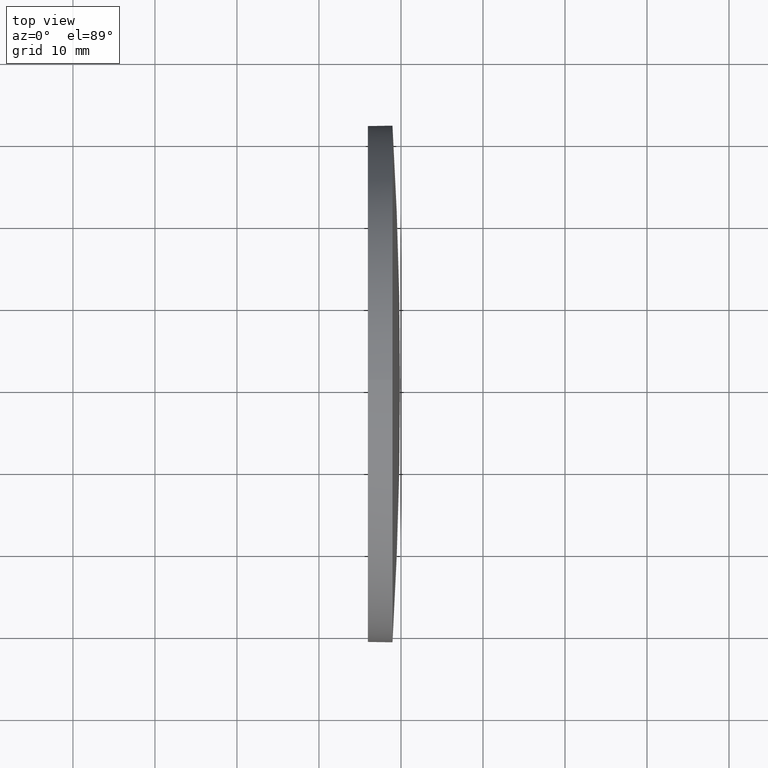
[diagram: clean part render]
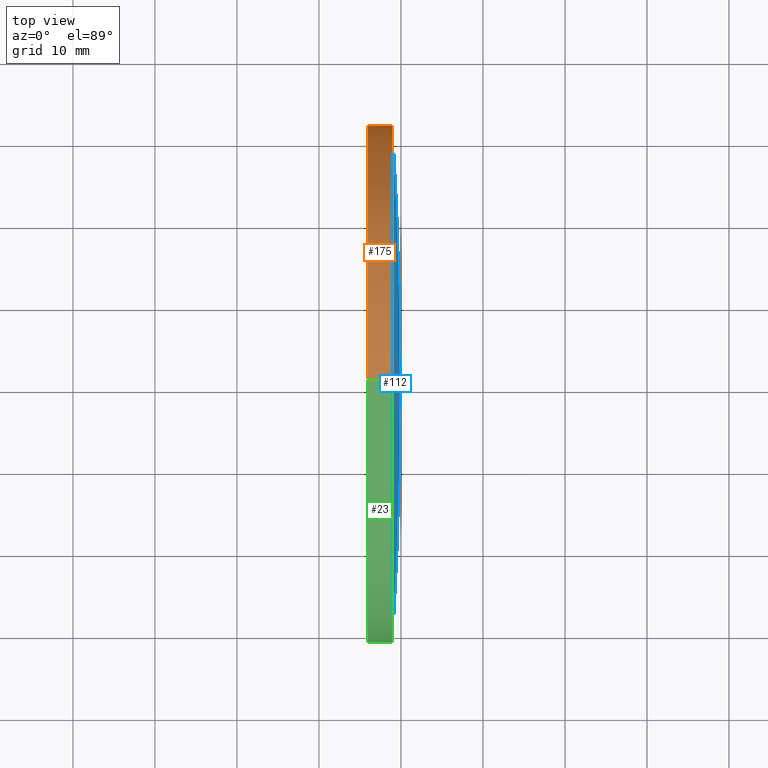
[diagram: same view with three faces highlighted in distinct colors, each labeled with its STEP entity id]
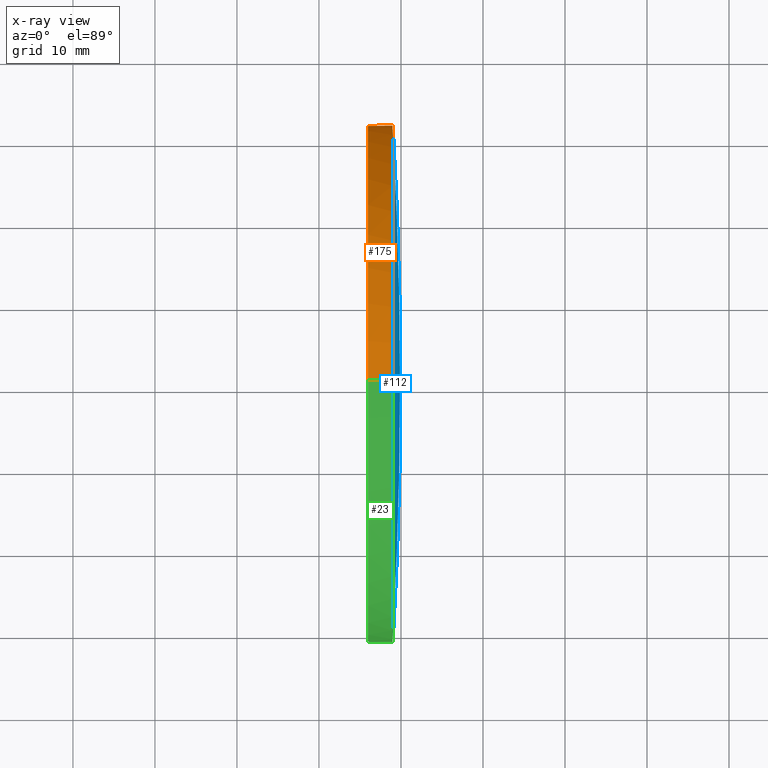
[diagram: x-ray of the same camera — body ghosted, the three highlighted faces saturated]
A machine part, top view with three faces highlighted in distinct colors.
The next image is the same camera in x-ray (body ghosted, the three faces saturated) — at least one of them is partly hidden behind the body in this view.
Their STEP definitions:

[orange] entity #175 — the highlighted cylindrical surface (partial cylindrical patch) has radius 31.5 mm, axis along (-1, -0, -0).
#1 = ORIENTED_EDGE ( 'NONE', *, *, #38, .F. ) ;
#3 = FACE_OUTER_BOUND ( 'NONE', #62, .T. ) ;
#4 = EDGE_CURVE ( 'NONE', #143, #111, #71, .T. ) ;
#6 = DIRECTION ( 'NONE',  ( -1.000000000000000000, -0.0000000000000000000, -0.0000000000000000000 ) ) ;
#8 = CARTESIAN_POINT ( 'NONE',  ( 228.9653141997173700, 130.4671098528244200, 0.0000000000000000000 ) ) ;
#9 = CYLINDRICAL_SURFACE ( 'NONE', #135, 31.50000000000000000 ) ;
#11 = DIRECTION ( 'NONE',  ( -1.000000000000000000, -0.0000000000000000000, -0.0000000000000000000 ) ) ;
#12 = CARTESIAN_POINT ( 'NONE',  ( 228.9653141997173700, 130.4671098528244200, -31.50000000000000000 ) ) ;
#14 = VECTOR ( 'NONE', #11, 1000.000000000000000 ) ;
#16 = ORIENTED_EDGE ( 'NONE', *, *, #4, .F. ) ;
#29 = EDGE_CURVE ( 'NONE', #155, #117, #103, .T. ) ;
#33 = CARTESIAN_POINT ( 'NONE',  ( 225.9653141997173400, 130.4671098528244200, 0.0000000000000000000 ) ) ;
#38 = EDGE_CURVE ( 'NONE', #111, #138, #119, .T. ) ;
#39 = CARTESIAN_POINT ( 'NONE',  ( 228.9653141997173700, 130.4671098528244200, 0.0000000000000000000 ) ) ;
#40 = VECTOR ( 'NONE', #86, 1000.000000000000000 ) ;
#52 = AXIS2_PLACEMENT_3D ( 'NONE', #33, #129, #164 ) ;
#55 = CARTESIAN_POINT ( 'NONE',  ( 217.9945825323866300, 130.4671098528244200, 31.50000000000000000 ) ) ;
#57 = CARTESIAN_POINT ( 'NONE',  ( 228.9653141997173700, 130.4671098528244200, 31.50000000000000000 ) ) ;
#62 = EDGE_LOOP ( 'NONE', ( #128, #74, #1, #16, #151 ) ) ;
#65 = CARTESIAN_POINT ( 'NONE',  ( 225.9653141997173400, 130.4671098528244200, -31.50000000000000000 ) ) ;
#71 = LINE ( 'NONE', #55, #14 ) ;
#74 = ORIENTED_EDGE ( 'NONE', *, *, #166, .T. ) ;
#83 = EDGE_CURVE ( 'NONE', #143, #155, #145, .T. ) ;
#86 = DIRECTION ( 'NONE',  ( -1.000000000000000000, -0.0000000000000000000, -0.0000000000000000000 ) ) ;
#88 = DIRECTION ( 'NONE',  ( -1.000000000000000000, -0.0000000000000000000, -0.0000000000000000000 ) ) ;
#92 = DIRECTION ( 'NONE',  ( 0.0000000000000000000, 0.0000000000000000000, 1.000000000000000000 ) ) ;
#95 = AXIS2_PLACEMENT_3D ( 'NONE', #8, #6, #116 ) ;
#99 = CARTESIAN_POINT ( 'NONE',  ( 217.9945825323866300, 130.4671098528244200, 0.0000000000000000000 ) ) ;
#102 = CARTESIAN_POINT ( 'NONE',  ( 217.9945825323866300, 130.4671098528244200, -31.50000000000000000 ) ) ;
#103 = CIRCLE ( 'NONE', #95, 31.50000000000000000 ) ;
#111 = VERTEX_POINT ( 'NONE', #180 ) ;
#116 = DIRECTION ( 'NONE',  ( 0.0000000000000000000, 0.0000000000000000000, 1.000000000000000000 ) ) ;
#117 = VERTEX_POINT ( 'NONE', #12 ) ;
#119 = CIRCLE ( 'NONE', #52, 31.50000000000000000 ) ;
#128 = ORIENTED_EDGE ( 'NONE', *, *, #29, .T. ) ;
#129 = DIRECTION ( 'NONE',  ( -1.000000000000000000, -0.0000000000000000000, -0.0000000000000000000 ) ) ;
#130 = DIRECTION ( 'NONE',  ( -1.000000000000000000, -0.0000000000000000000, -0.0000000000000000000 ) ) ;
#135 = AXIS2_PLACEMENT_3D ( 'NONE', #99, #88, #165 ) ;
#138 = VERTEX_POINT ( 'NONE', #65 ) ;
#139 = AXIS2_PLACEMENT_3D ( 'NONE', #39, #130, #92 ) ;
#143 = VERTEX_POINT ( 'NONE', #57 ) ;
#145 = CIRCLE ( 'NONE', #139, 31.50000000000000000 ) ;
#149 = LINE ( 'NONE', #102, #40 ) ;
#151 = ORIENTED_EDGE ( 'NONE', *, *, #83, .T. ) ;
#155 = VERTEX_POINT ( 'NONE', #169 ) ;
#164 = DIRECTION ( 'NONE',  ( 0.0000000000000000000, 0.0000000000000000000, 1.000000000000000000 ) ) ;
#165 = DIRECTION ( 'NONE',  ( 0.0000000000000000000, 0.0000000000000000000, 1.000000000000000000 ) ) ;
#166 = EDGE_CURVE ( 'NONE', #117, #138, #149, .T. ) ;
#169 = CARTESIAN_POINT ( 'NONE',  ( 228.9653141997173400, 161.9671098528255900, 3.857637417314183200E-015 ) ) ;
#175 = ADVANCED_FACE ( 'NONE', ( #3 ), #9, .T. ) ;
#180 = CARTESIAN_POINT ( 'NONE',  ( 225.9653141997173400, 130.4671098528244200, 31.50000000000000000 ) ) ;

[blue] entity #112 — the highlighted spherical surface has radius 533.933 mm.
#13 = EDGE_CURVE ( 'NONE', #80, #155, #161, .T. ) ;
#17 = ORIENTED_EDGE ( 'NONE', *, *, #91, .F. ) ;
#24 = DIRECTION ( 'NONE',  ( 0.0000000000000000000, -1.000000000000000000, -1.224646799147353200E-016 ) ) ;
#25 = DIRECTION ( 'NONE',  ( -1.000000000000000000, 0.0000000000000000000, 0.0000000000000000000 ) ) ;
#26 = DIRECTION ( 'NONE',  ( 0.0000000000000000000, -1.224646799147353200E-016, 1.000000000000000000 ) ) ;
#34 = CARTESIAN_POINT ( 'NONE',  ( -304.0374277357623800, 130.4671098528253900, 0.0000000000000000000 ) ) ;
#37 = DIRECTION ( 'NONE',  ( 0.0000000000000000000, 0.0000000000000000000, 1.000000000000000000 ) ) ;
#39 = CARTESIAN_POINT ( 'NONE',  ( 228.9653141997173700, 130.4671098528244200, 0.0000000000000000000 ) ) ;
#43 = SPHERICAL_SURFACE ( 'NONE', #184, 533.9327419354798400 ) ;
#44 = CARTESIAN_POINT ( 'NONE',  ( 228.9653141997173400, 98.96710985282423700, 0.0000000000000000000 ) ) ;
#47 = EDGE_CURVE ( 'NONE', #80, #183, #51, .T. ) ;
#48 = ORIENTED_EDGE ( 'NONE', *, *, #47, .F. ) ;
#51 = CIRCLE ( 'NONE', #109, 533.9327419354798400 ) ;
#53 = ORIENTED_EDGE ( 'NONE', *, *, #83, .F. ) ;
#54 = CARTESIAN_POINT ( 'NONE',  ( -304.0374277357623800, 130.4671098528253900, 0.0000000000000000000 ) ) ;
#57 = CARTESIAN_POINT ( 'NONE',  ( 228.9653141997173700, 130.4671098528244200, 31.50000000000000000 ) ) ;
#77 = FACE_OUTER_BOUND ( 'NONE', #84, .T. ) ;
#80 = VERTEX_POINT ( 'NONE', #141 ) ;
#83 = EDGE_CURVE ( 'NONE', #143, #155, #145, .T. ) ;
#84 = EDGE_LOOP ( 'NONE', ( #48, #125, #53, #17 ) ) ;
#91 = EDGE_CURVE ( 'NONE', #183, #143, #153, .T. ) ;
#92 = DIRECTION ( 'NONE',  ( 0.0000000000000000000, 0.0000000000000000000, 1.000000000000000000 ) ) ;
#96 = DIRECTION ( 'NONE',  ( 0.0000000000000000000, 0.0000000000000000000, -1.000000000000000000 ) ) ;
#101 = DIRECTION ( 'NONE',  ( 0.0000000000000000000, 0.0000000000000000000, 1.000000000000000000 ) ) ;
#104 = DIRECTION ( 'NONE',  ( -1.000000000000000000, -0.0000000000000000000, -0.0000000000000000000 ) ) ;
#109 = AXIS2_PLACEMENT_3D ( 'NONE', #54, #96, #25 ) ;
#112 = ADVANCED_FACE ( 'NONE', ( #77 ), #43, .T. ) ;
#120 = CARTESIAN_POINT ( 'NONE',  ( -304.0374277357623800, 130.4671098528253900, 0.0000000000000000000 ) ) ;
#125 = ORIENTED_EDGE ( 'NONE', *, *, #13, .T. ) ;
#130 = DIRECTION ( 'NONE',  ( -1.000000000000000000, -0.0000000000000000000, -0.0000000000000000000 ) ) ;
#131 = AXIS2_PLACEMENT_3D ( 'NONE', #132, #104, #101 ) ;
#132 = CARTESIAN_POINT ( 'NONE',  ( 228.9653141997173700, 130.4671098528244200, 0.0000000000000000000 ) ) ;
#139 = AXIS2_PLACEMENT_3D ( 'NONE', #39, #130, #92 ) ;
#141 = CARTESIAN_POINT ( 'NONE',  ( 229.8953141997174300, 130.4671098528253600, 0.0000000000000000000 ) ) ;
#143 = VERTEX_POINT ( 'NONE', #57 ) ;
#144 = DIRECTION ( 'NONE',  ( 0.0000000000000000000, -1.000000000000000000, 0.0000000000000000000 ) ) ;
#145 = CIRCLE ( 'NONE', #139, 31.50000000000000000 ) ;
#147 = AXIS2_PLACEMENT_3D ( 'NONE', #34, #26, #24 ) ;
#153 = CIRCLE ( 'NONE', #131, 31.50000000000000000 ) ;
#155 = VERTEX_POINT ( 'NONE', #169 ) ;
#161 = CIRCLE ( 'NONE', #147, 533.9327419354798400 ) ;
#169 = CARTESIAN_POINT ( 'NONE',  ( 228.9653141997173400, 161.9671098528255900, 3.857637417314183200E-015 ) ) ;
#183 = VERTEX_POINT ( 'NONE', #44 ) ;
#184 = AXIS2_PLACEMENT_3D ( 'NONE', #120, #37, #144 ) ;

[green] entity #23 — the highlighted cylindrical surface (partial cylindrical patch) has radius 31.5 mm, axis along (-1, -0, -0).
#4 = EDGE_CURVE ( 'NONE', #143, #111, #71, .T. ) ;
#11 = DIRECTION ( 'NONE',  ( -1.000000000000000000, -0.0000000000000000000, -0.0000000000000000000 ) ) ;
#12 = CARTESIAN_POINT ( 'NONE',  ( 228.9653141997173700, 130.4671098528244200, -31.50000000000000000 ) ) ;
#14 = VECTOR ( 'NONE', #11, 1000.000000000000000 ) ;
#18 = ORIENTED_EDGE ( 'NONE', *, *, #166, .F. ) ;
#20 = AXIS2_PLACEMENT_3D ( 'NONE', #97, #178, #72 ) ;
#21 = AXIS2_PLACEMENT_3D ( 'NONE', #118, #179, #90 ) ;
#23 = ADVANCED_FACE ( 'NONE', ( #107 ), #186, .T. ) ;
#40 = VECTOR ( 'NONE', #86, 1000.000000000000000 ) ;
#44 = CARTESIAN_POINT ( 'NONE',  ( 228.9653141997173400, 98.96710985282423700, 0.0000000000000000000 ) ) ;
#55 = CARTESIAN_POINT ( 'NONE',  ( 217.9945825323866300, 130.4671098528244200, 31.50000000000000000 ) ) ;
#57 = CARTESIAN_POINT ( 'NONE',  ( 228.9653141997173700, 130.4671098528244200, 31.50000000000000000 ) ) ;
#65 = CARTESIAN_POINT ( 'NONE',  ( 225.9653141997173400, 130.4671098528244200, -31.50000000000000000 ) ) ;
#71 = LINE ( 'NONE', #55, #14 ) ;
#72 = DIRECTION ( 'NONE',  ( 0.0000000000000000000, 0.0000000000000000000, 1.000000000000000000 ) ) ;
#73 = CIRCLE ( 'NONE', #163, 31.50000000000000000 ) ;
#86 = DIRECTION ( 'NONE',  ( -1.000000000000000000, -0.0000000000000000000, -0.0000000000000000000 ) ) ;
#90 = DIRECTION ( 'NONE',  ( 0.0000000000000000000, 0.0000000000000000000, 1.000000000000000000 ) ) ;
#91 = EDGE_CURVE ( 'NONE', #183, #143, #153, .T. ) ;
#97 = CARTESIAN_POINT ( 'NONE',  ( 217.9945825323866300, 130.4671098528244200, 0.0000000000000000000 ) ) ;
#101 = DIRECTION ( 'NONE',  ( 0.0000000000000000000, 0.0000000000000000000, 1.000000000000000000 ) ) ;
#102 = CARTESIAN_POINT ( 'NONE',  ( 217.9945825323866300, 130.4671098528244200, -31.50000000000000000 ) ) ;
#104 = DIRECTION ( 'NONE',  ( -1.000000000000000000, -0.0000000000000000000, -0.0000000000000000000 ) ) ;
#106 = ORIENTED_EDGE ( 'NONE', *, *, #91, .T. ) ;
#107 = FACE_OUTER_BOUND ( 'NONE', #121, .T. ) ;
#111 = VERTEX_POINT ( 'NONE', #180 ) ;
#115 = ORIENTED_EDGE ( 'NONE', *, *, #177, .T. ) ;
#117 = VERTEX_POINT ( 'NONE', #12 ) ;
#118 = CARTESIAN_POINT ( 'NONE',  ( 225.9653141997173400, 130.4671098528244200, 0.0000000000000000000 ) ) ;
#121 = EDGE_LOOP ( 'NONE', ( #18, #115, #106, #162, #148 ) ) ;
#131 = AXIS2_PLACEMENT_3D ( 'NONE', #132, #104, #101 ) ;
#132 = CARTESIAN_POINT ( 'NONE',  ( 228.9653141997173700, 130.4671098528244200, 0.0000000000000000000 ) ) ;
#133 = DIRECTION ( 'NONE',  ( 0.0000000000000000000, 0.0000000000000000000, 1.000000000000000000 ) ) ;
#136 = CARTESIAN_POINT ( 'NONE',  ( 228.9653141997173700, 130.4671098528244200, 0.0000000000000000000 ) ) ;
#138 = VERTEX_POINT ( 'NONE', #65 ) ;
#140 = CIRCLE ( 'NONE', #21, 31.50000000000000000 ) ;
#143 = VERTEX_POINT ( 'NONE', #57 ) ;
#148 = ORIENTED_EDGE ( 'NONE', *, *, #152, .F. ) ;
#149 = LINE ( 'NONE', #102, #40 ) ;
#152 = EDGE_CURVE ( 'NONE', #138, #111, #140, .T. ) ;
#153 = CIRCLE ( 'NONE', #131, 31.50000000000000000 ) ;
#162 = ORIENTED_EDGE ( 'NONE', *, *, #4, .T. ) ;
#163 = AXIS2_PLACEMENT_3D ( 'NONE', #136, #185, #133 ) ;
#166 = EDGE_CURVE ( 'NONE', #117, #138, #149, .T. ) ;
#177 = EDGE_CURVE ( 'NONE', #117, #183, #73, .T. ) ;
#178 = DIRECTION ( 'NONE',  ( -1.000000000000000000, -0.0000000000000000000, -0.0000000000000000000 ) ) ;
#179 = DIRECTION ( 'NONE',  ( -1.000000000000000000, -0.0000000000000000000, -0.0000000000000000000 ) ) ;
#180 = CARTESIAN_POINT ( 'NONE',  ( 225.9653141997173400, 130.4671098528244200, 31.50000000000000000 ) ) ;
#183 = VERTEX_POINT ( 'NONE', #44 ) ;
#185 = DIRECTION ( 'NONE',  ( -1.000000000000000000, -0.0000000000000000000, -0.0000000000000000000 ) ) ;
#186 = CYLINDRICAL_SURFACE ( 'NONE', #20, 31.50000000000000000 ) ;